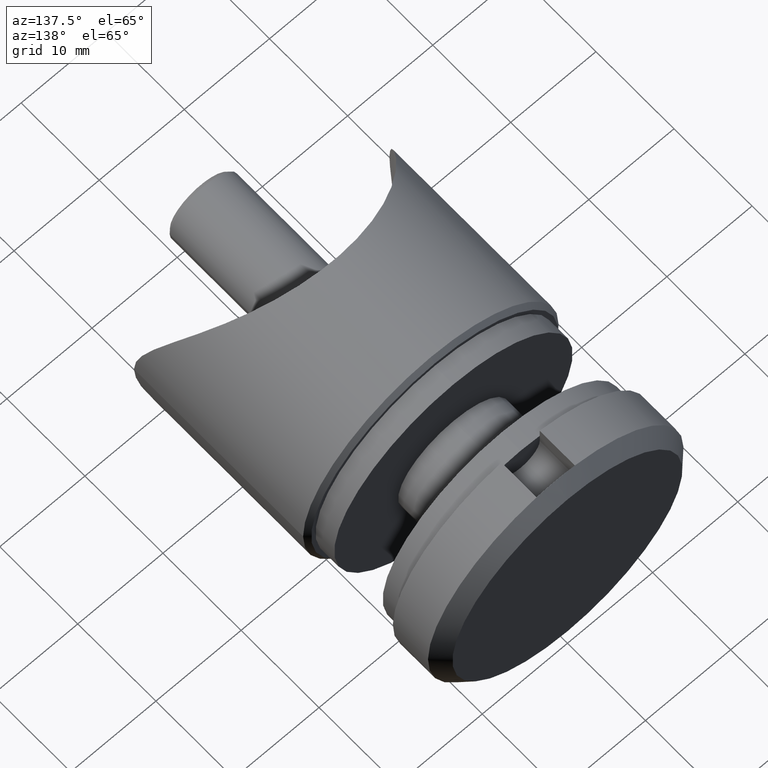
[diagram: clean part render]
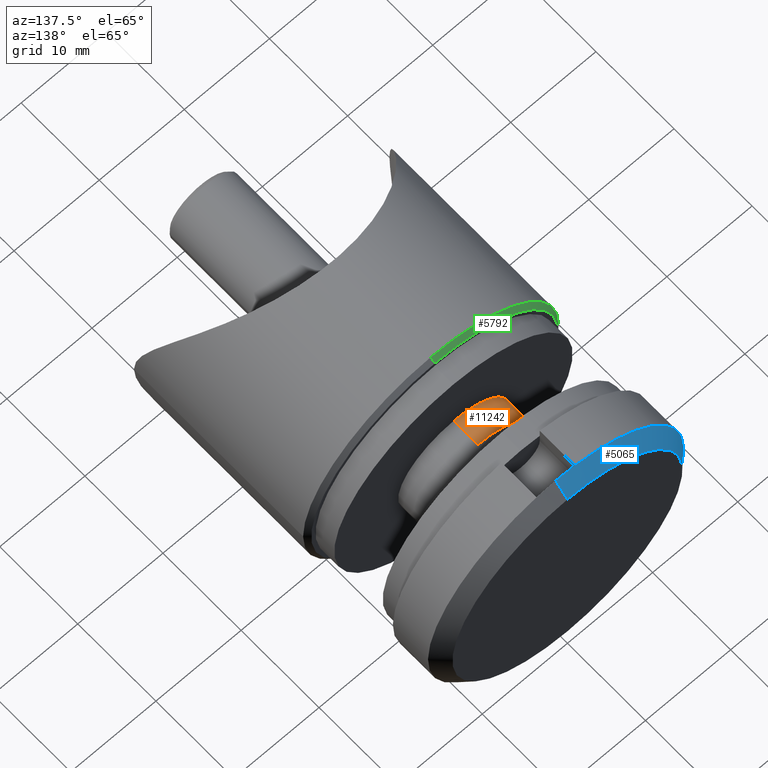
[diagram: same view with three faces highlighted in distinct colors, each labeled with its STEP entity id]
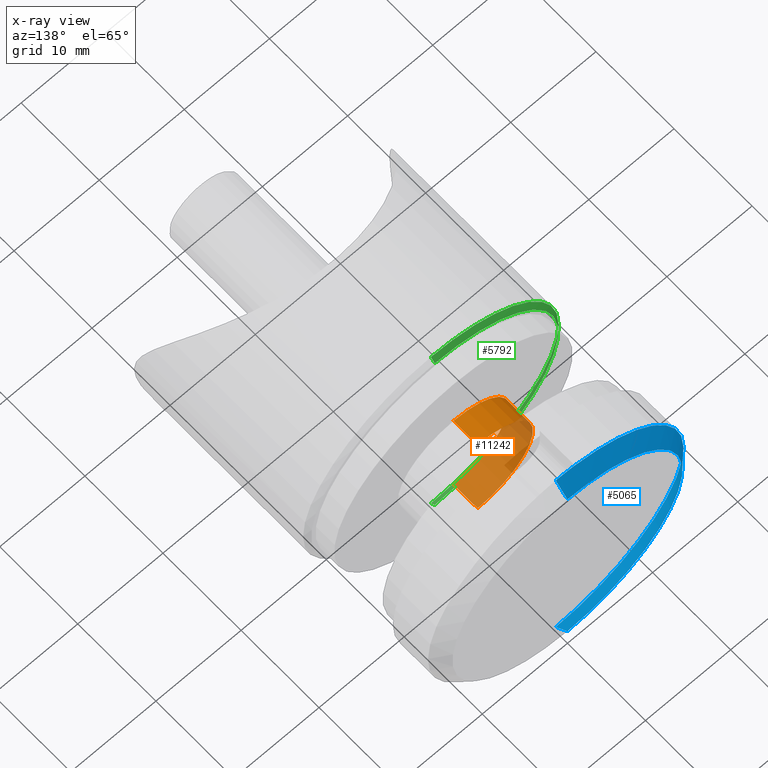
[diagram: x-ray of the same camera — body ghosted, the three highlighted faces saturated]
A machine part, auxiliary view with three faces highlighted in distinct colors.
The next image is the same camera in x-ray (body ghosted, the three faces saturated) — at least one of them is partly hidden behind the body in this view.
Their STEP definitions:

[orange] entity #11242 — the highlighted cylindrical surface (partial cylindrical patch) has radius 6.5 mm, axis along (-0, -1, -0).
#1072 = AXIS2_PLACEMENT_3D ( 'NONE', #12930, #3494, #11848 ) ;
#1082 = ORIENTED_EDGE ( 'NONE', *, *, #7998, .F. ) ;
#2047 = CIRCLE ( 'NONE', #10639, 6.500000000000000000 ) ;
#2192 = DIRECTION ( 'NONE',  ( 0.000000000000000000, 0.000000000000000000, -1.000000000000000000 ) ) ;
#2293 = CIRCLE ( 'NONE', #1072, 6.499999999999999112 ) ;
#2294 = CARTESIAN_POINT ( 'NONE',  ( 0.000000000000000000, 2.399999999999999023, 0.000000000000000000 ) ) ;
#3494 = DIRECTION ( 'NONE',  ( -0.000000000000000000, -1.000000000000000000, -0.000000000000000000 ) ) ;
#3798 = CARTESIAN_POINT ( 'NONE',  ( 0.000000000000000000, 5.500000000000000000, -6.499999999999999112 ) ) ;
#4189 = CARTESIAN_POINT ( 'NONE',  ( 7.960204194457796463E-16, 2.399999999999999023, 6.500000000000000888 ) ) ;
#4282 = VERTEX_POINT ( 'NONE', #4189 ) ;
#4971 = EDGE_LOOP ( 'NONE', ( #1082, #10620, #6739, #9715 ) ) ;
#5030 = LINE ( 'NONE', #14145, #7776 ) ;
#5114 = VECTOR ( 'NONE', #10052, 1000.000000000000000 ) ;
#5245 = AXIS2_PLACEMENT_3D ( 'NONE', #14963, #10309, #12947 ) ;
#5256 = CARTESIAN_POINT ( 'NONE',  ( 0.000000000000000000, 0.000000000000000000, -6.499999999999999112 ) ) ;
#5346 = EDGE_CURVE ( 'NONE', #14329, #12512, #13021, .T. ) ;
#5974 = DIRECTION ( 'NONE',  ( -0.000000000000000000, -1.000000000000000000, -0.000000000000000000 ) ) ;
#6469 = CARTESIAN_POINT ( 'NONE',  ( 7.960204194457794491E-16, 5.500000000000000000, 6.499999999999999112 ) ) ;
#6739 = ORIENTED_EDGE ( 'NONE', *, *, #5346, .T. ) ;
#6881 = CYLINDRICAL_SURFACE ( 'NONE', #5245, 6.499999999999999112 ) ;
#7776 = VECTOR ( 'NONE', #5974, 1000.000000000000000 ) ;
#7998 = EDGE_CURVE ( 'NONE', #13810, #4282, #5030, .T. ) ;
#9715 = ORIENTED_EDGE ( 'NONE', *, *, #13959, .F. ) ;
#9737 = EDGE_CURVE ( 'NONE', #13810, #14329, #2293, .T. ) ;
#10052 = DIRECTION ( 'NONE',  ( -0.000000000000000000, -1.000000000000000000, -0.000000000000000000 ) ) ;
#10309 = DIRECTION ( 'NONE',  ( -0.000000000000000000, -1.000000000000000000, -0.000000000000000000 ) ) ;
#10372 = FACE_OUTER_BOUND ( 'NONE', #4971, .T. ) ;
#10620 = ORIENTED_EDGE ( 'NONE', *, *, #9737, .T. ) ;
#10639 = AXIS2_PLACEMENT_3D ( 'NONE', #2294, #15023, #2192 ) ;
#11242 = ADVANCED_FACE ( 'NONE', ( #10372 ), #6881, .T. ) ;
#11848 = DIRECTION ( 'NONE',  ( 0.000000000000000000, 0.000000000000000000, -1.000000000000000000 ) ) ;
#12512 = VERTEX_POINT ( 'NONE', #14859 ) ;
#12930 = CARTESIAN_POINT ( 'NONE',  ( 0.000000000000000000, 5.500000000000000000, 0.000000000000000000 ) ) ;
#12947 = DIRECTION ( 'NONE',  ( 0.000000000000000000, 0.000000000000000000, -1.000000000000000000 ) ) ;
#13021 = LINE ( 'NONE', #5256, #5114 ) ;
#13810 = VERTEX_POINT ( 'NONE', #6469 ) ;
#13959 = EDGE_CURVE ( 'NONE', #4282, #12512, #2047, .T. ) ;
#14145 = CARTESIAN_POINT ( 'NONE',  ( 7.960204194457794491E-16, 0.000000000000000000, 6.499999999999999112 ) ) ;
#14329 = VERTEX_POINT ( 'NONE', #3798 ) ;
#14859 = CARTESIAN_POINT ( 'NONE',  ( 0.000000000000000000, 2.399999999999999023, -6.500000000000000000 ) ) ;
#14963 = CARTESIAN_POINT ( 'NONE',  ( 0.000000000000000000, 0.000000000000000000, 0.000000000000000000 ) ) ;
#15023 = DIRECTION ( 'NONE',  ( -0.000000000000000000, -1.000000000000000000, -0.000000000000000000 ) ) ;

[blue] entity #5065 — the highlighted conical surface has half-angle 45 deg.
#212 = CARTESIAN_POINT ( 'NONE',  ( 0.000000000000000000, 9.500000000000001776, 0.000000000000000000 ) ) ;
#616 = DIRECTION ( 'NONE',  ( 0.000000000000000000, 0.000000000000000000, -1.000000000000000000 ) ) ;
#973 = DIRECTION ( 'NONE',  ( 0.000000000000000000, -0.7071067811865471286, -0.7071067811865479058 ) ) ;
#1338 = CARTESIAN_POINT ( 'NONE',  ( 1.836970198721029983E-15, 9.500000000000001776, 15.00000000000000178 ) ) ;
#1778 = DIRECTION ( 'NONE',  ( -0.000000000000000000, -1.000000000000000000, -0.000000000000000000 ) ) ;
#2387 = EDGE_CURVE ( 'NONE', #12817, #7033, #14215, .T. ) ;
#3212 = CIRCLE ( 'NONE', #12001, 13.50000000000000000 ) ;
#3453 = FACE_OUTER_BOUND ( 'NONE', #6622, .T. ) ;
#3895 = VECTOR ( 'NONE', #10799, 1000.000000000000000 ) ;
#3932 = EDGE_CURVE ( 'NONE', #12817, #9644, #3212, .T. ) ;
#5055 = EDGE_CURVE ( 'NONE', #8394, #5335, #12858, .T. ) ;
#5065 = ADVANCED_FACE ( 'NONE', ( #3453 ), #9672, .T. ) ;
#5302 = CARTESIAN_POINT ( 'NONE',  ( 0.000000000000000000, 9.500000000000001776, -15.00000000000000355 ) ) ;
#5335 = VERTEX_POINT ( 'NONE', #5302 ) ;
#6285 = EDGE_CURVE ( 'NONE', #9644, #5335, #11029, .T. ) ;
#6465 = DIRECTION ( 'NONE',  ( 0.000000000000000000, 0.000000000000000000, -1.000000000000000000 ) ) ;
#6622 = EDGE_LOOP ( 'NONE', ( #11673, #10943, #15260, #14904, #12224 ) ) ;
#7033 = VERTEX_POINT ( 'NONE', #12696 ) ;
#7109 = DIRECTION ( 'NONE',  ( -0.000000000000000000, -1.000000000000000000, -0.000000000000000000 ) ) ;
#7686 = CARTESIAN_POINT ( 'NONE',  ( 0.000000000000000000, 9.500000000000001776, 0.000000000000000000 ) ) ;
#7954 = DIRECTION ( 'NONE',  ( 0.000000000000000000, 0.000000000000000000, -1.000000000000000000 ) ) ;
#8394 = VERTEX_POINT ( 'NONE', #9814 ) ;
#8535 = CARTESIAN_POINT ( 'NONE',  ( 1.745121688784978228E-15, 11.00000000000000000, 13.50000000000000000 ) ) ;
#9644 = VERTEX_POINT ( 'NONE', #12323 ) ;
#9672 = CONICAL_SURFACE ( 'NONE', #14353, 15.00000000000000178, 0.7853981633974488341 ) ;
#9814 = CARTESIAN_POINT ( 'NONE',  ( -2.250000000000000888, 9.500000000000001776, 14.83028994996389116 ) ) ;
#9873 = DIRECTION ( 'NONE',  ( -0.000000000000000000, -1.000000000000000000, -0.000000000000000000 ) ) ;
#9902 = VECTOR ( 'NONE', #973, 1000.000000000000000 ) ;
#10013 = CIRCLE ( 'NONE', #11939, 15.00000000000000178 ) ;
#10799 = DIRECTION ( 'NONE',  ( 8.659560562354937789E-17, -0.7071067811865471286, 0.7071067811865479058 ) ) ;
#10909 = EDGE_CURVE ( 'NONE', #7033, #8394, #10013, .T. ) ;
#10943 = ORIENTED_EDGE ( 'NONE', *, *, #3932, .T. ) ;
#11029 = LINE ( 'NONE', #12684, #9902 ) ;
#11425 = CARTESIAN_POINT ( 'NONE',  ( 0.000000000000000000, 11.00000000000000000, 0.000000000000000000 ) ) ;
#11509 = AXIS2_PLACEMENT_3D ( 'NONE', #7686, #9873, #6465 ) ;
#11673 = ORIENTED_EDGE ( 'NONE', *, *, #2387, .F. ) ;
#11939 = AXIS2_PLACEMENT_3D ( 'NONE', #212, #7109, #14337 ) ;
#12001 = AXIS2_PLACEMENT_3D ( 'NONE', #11425, #14979, #7954 ) ;
#12224 = ORIENTED_EDGE ( 'NONE', *, *, #10909, .F. ) ;
#12323 = CARTESIAN_POINT ( 'NONE',  ( 0.000000000000000000, 11.00000000000000000, -13.50000000000000000 ) ) ;
#12684 = CARTESIAN_POINT ( 'NONE',  ( 0.000000000000000000, 9.500000000000001776, -15.00000000000000178 ) ) ;
#12696 = CARTESIAN_POINT ( 'NONE',  ( 1.836970198721029983E-15, 9.500000000000001776, 15.00000000000000178 ) ) ;
#12817 = VERTEX_POINT ( 'NONE', #8535 ) ;
#12858 = CIRCLE ( 'NONE', #11509, 15.00000000000000178 ) ;
#14215 = LINE ( 'NONE', #1338, #3895 ) ;
#14337 = DIRECTION ( 'NONE',  ( 0.000000000000000000, 0.000000000000000000, -1.000000000000000000 ) ) ;
#14353 = AXIS2_PLACEMENT_3D ( 'NONE', #14594, #1778, #616 ) ;
#14594 = CARTESIAN_POINT ( 'NONE',  ( 0.000000000000000000, 9.500000000000001776, 0.000000000000000000 ) ) ;
#14904 = ORIENTED_EDGE ( 'NONE', *, *, #5055, .F. ) ;
#14979 = DIRECTION ( 'NONE',  ( -0.000000000000000000, -1.000000000000000000, -0.000000000000000000 ) ) ;
#15260 = ORIENTED_EDGE ( 'NONE', *, *, #6285, .T. ) ;

[green] entity #5792 — the highlighted conical surface has half-angle 45 deg.
#2480 = AXIS2_PLACEMENT_3D ( 'NONE', #9527, #9575, #6219 ) ;
#2513 = VERTEX_POINT ( 'NONE', #8723 ) ;
#2567 = CONICAL_SURFACE ( 'NONE', #6176, 15.00000000000000178, 0.7853981633974501664 ) ;
#2719 = VERTEX_POINT ( 'NONE', #13850 ) ;
#2750 = FACE_OUTER_BOUND ( 'NONE', #12089, .T. ) ;
#3629 = ORIENTED_EDGE ( 'NONE', *, *, #10759, .F. ) ;
#3875 = DIRECTION ( 'NONE',  ( -0.000000000000000000, -1.000000000000000000, -0.000000000000000000 ) ) ;
#4224 = DIRECTION ( 'NONE',  ( 0.000000000000000000, 0.000000000000000000, 1.000000000000000000 ) ) ;
#4445 = CIRCLE ( 'NONE', #2480, 15.00000000000000178 ) ;
#4482 = LINE ( 'NONE', #13237, #12412 ) ;
#4928 = EDGE_CURVE ( 'NONE', #7098, #2513, #10801, .T. ) ;
#5081 = DIRECTION ( 'NONE',  ( 0.000000000000000000, 0.000000000000000000, -1.000000000000000000 ) ) ;
#5792 = ADVANCED_FACE ( 'NONE', ( #2750 ), #2567, .T. ) ;
#5830 = ORIENTED_EDGE ( 'NONE', *, *, #8086, .F. ) ;
#6115 = CARTESIAN_POINT ( 'NONE',  ( -7.347880794884114806E-16, 12.50000000000000000, 15.00000000000000178 ) ) ;
#6176 = AXIS2_PLACEMENT_3D ( 'NONE', #10918, #3875, #5081 ) ;
#6191 = DIRECTION ( 'NONE',  ( 0.000000000000000000, -0.7071067811865462405, -0.7071067811865489050 ) ) ;
#6219 = DIRECTION ( 'NONE',  ( 0.000000000000000000, 0.000000000000000000, 1.000000000000000000 ) ) ;
#6650 = DIRECTION ( 'NONE',  ( -0.000000000000000000, -1.000000000000000000, -0.000000000000000000 ) ) ;
#6866 = CARTESIAN_POINT ( 'NONE',  ( -7.654042494670951690E-16, 12.99999999999999822, 14.50000000000000178 ) ) ;
#7098 = VERTEX_POINT ( 'NONE', #6866 ) ;
#7274 = DIRECTION ( 'NONE',  ( 8.659560562354950115E-17, -0.7071067811865462405, 0.7071067811865489050 ) ) ;
#7988 = VERTEX_POINT ( 'NONE', #9967 ) ;
#8086 = EDGE_CURVE ( 'NONE', #10811, #7098, #12223, .T. ) ;
#8367 = DIRECTION ( 'NONE',  ( 1.650797095189058802E-31, 1.000000000000000000, 0.000000000000000000 ) ) ;
#8723 = CARTESIAN_POINT ( 'NONE',  ( -7.347880794884114806E-16, 12.50000000000000000, 15.00000000000000178 ) ) ;
#8990 = CARTESIAN_POINT ( 'NONE',  ( -2.571758278209441267E-15, 12.99999999999999822, -14.50000000000000178 ) ) ;
#9527 = CARTESIAN_POINT ( 'NONE',  ( -2.571758278209441267E-15, 12.50000000000000000, 0.000000000000000000 ) ) ;
#9575 = DIRECTION ( 'NONE',  ( -0.000000000000000000, -1.000000000000000000, -0.000000000000000000 ) ) ;
#9679 = DIRECTION ( 'NONE',  ( -1.000000000000000000, 0.000000000000000000, 0.000000000000000000 ) ) ;
#9967 = CARTESIAN_POINT ( 'NONE',  ( -15.00000000000000355, 12.50000000000000000, 1.836970198721029983E-15 ) ) ;
#10759 = EDGE_CURVE ( 'NONE', #2513, #7988, #13226, .T. ) ;
#10801 = LINE ( 'NONE', #6115, #13217 ) ;
#10811 = VERTEX_POINT ( 'NONE', #8990 ) ;
#10918 = CARTESIAN_POINT ( 'NONE',  ( -2.571758278209441267E-15, 12.50000000000000000, 0.000000000000000000 ) ) ;
#11171 = CARTESIAN_POINT ( 'NONE',  ( -2.571758278209441267E-15, 12.50000000000000000, 0.000000000000000000 ) ) ;
#11463 = EDGE_CURVE ( 'NONE', #10811, #2719, #4482, .T. ) ;
#11724 = ORIENTED_EDGE ( 'NONE', *, *, #11463, .T. ) ;
#12003 = CARTESIAN_POINT ( 'NONE',  ( -2.571758278209441267E-15, 12.99999999999999822, 0.000000000000000000 ) ) ;
#12089 = EDGE_LOOP ( 'NONE', ( #12206, #5830, #11724, #13060, #3629 ) ) ;
#12206 = ORIENTED_EDGE ( 'NONE', *, *, #4928, .F. ) ;
#12223 = CIRCLE ( 'NONE', #14169, 14.50000000000000178 ) ;
#12412 = VECTOR ( 'NONE', #6191, 999.9999999999998863 ) ;
#12439 = AXIS2_PLACEMENT_3D ( 'NONE', #11171, #6650, #4224 ) ;
#13060 = ORIENTED_EDGE ( 'NONE', *, *, #13708, .F. ) ;
#13217 = VECTOR ( 'NONE', #7274, 999.9999999999998863 ) ;
#13226 = CIRCLE ( 'NONE', #12439, 15.00000000000000178 ) ;
#13237 = CARTESIAN_POINT ( 'NONE',  ( -2.571758278209441267E-15, 12.50000000000000000, -15.00000000000000178 ) ) ;
#13708 = EDGE_CURVE ( 'NONE', #7988, #2719, #4445, .T. ) ;
#13850 = CARTESIAN_POINT ( 'NONE',  ( -2.571758278209441267E-15, 12.50000000000000000, -15.00000000000000178 ) ) ;
#14169 = AXIS2_PLACEMENT_3D ( 'NONE', #12003, #8367, #9679 ) ;